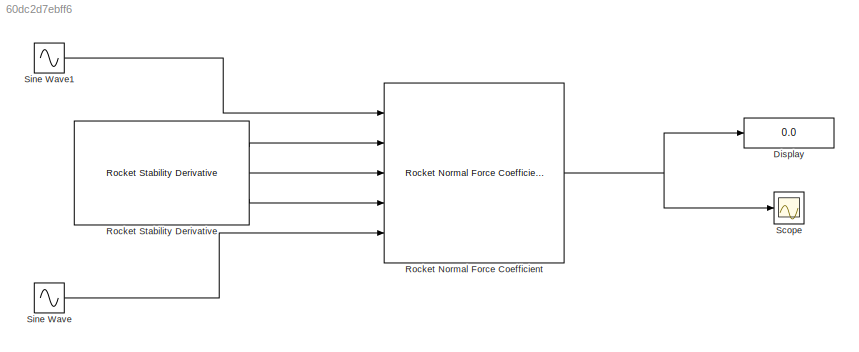
MODEL slx_60dc2d7ebff6
KIND model
BLOCK [Display] Display
  Decimation = 1
  Ports = [1]
BLOCK [Reference] Rocket Normal Force Coefficient  REF=rocket_angular_flight_library/Rocket Normal Force Coefficient
  Ports = [5, 1]
  SourceBlock = rocket_angular_flight_library/Rocket Normal Force Coefficient
  SourceType = SubSystem
BLOCK [Reference] Rocket Stability Derivative  REF=rocket_angular_flight_library/Rocket Stability Derivative
  Ports = [0, 3]
  SourceBlock = rocket_angular_flight_library/Rocket Stability Derivative
  SourceType = SubSystem
BLOCK [Scope] Scope
  DataFormat = StructureWithTime
  Floating = off
  NumInputPorts = 1
  Ports = [1]
  SampleTime = 0
  ShowLegends = off
BLOCK [Sin] Sine Wave
  Phase = pi
  Ports = [0, 1]
  SampleTime = 0
BLOCK [Sin] Sine Wave1
  Ports = [0, 1]
  SampleTime = 0
NET Rocket Normal Force Coefficient:1 -> Display:1, Scope:1
LINE Rocket Stability Derivative:1 -> Rocket Normal Force Coefficient:2
LINE Rocket Stability Derivative:2 -> Rocket Normal Force Coefficient:3
LINE Rocket Stability Derivative:3 -> Rocket Normal Force Coefficient:4
LINE Sine Wave1:1 -> Rocket Normal Force Coefficient:1
LINE Sine Wave:1 -> Rocket Normal Force Coefficient:5
note: NET lines group one-source signal fan-out (src -> all destinations, sorted); 1:1 wires keep LINE
